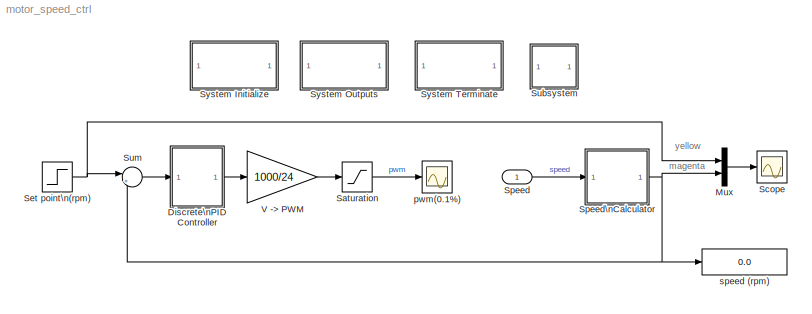
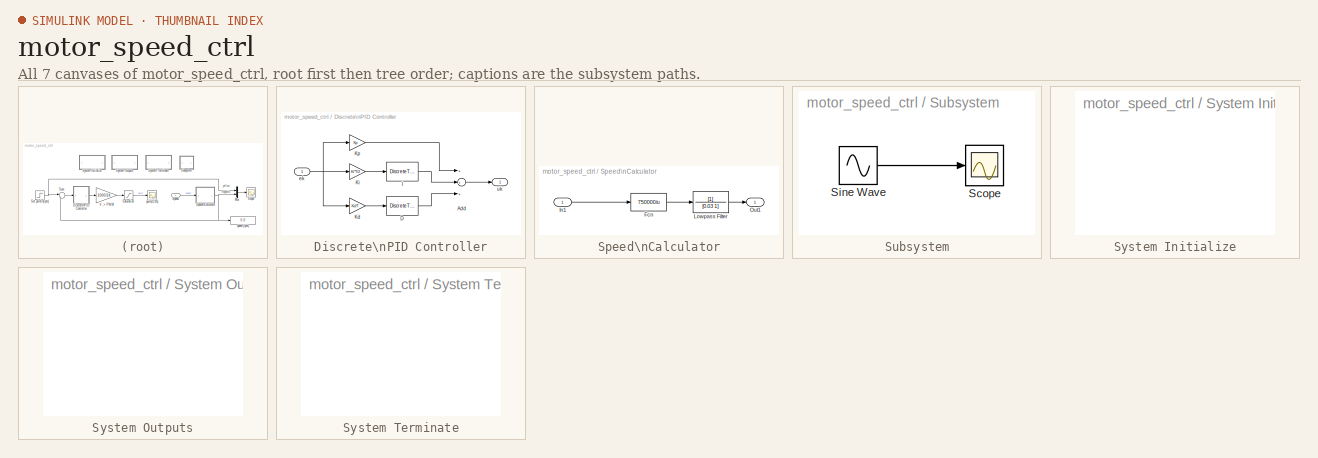
[diagram: thumbnail index - all 7 canvases of the model, root first then tree order]
MODEL motor_speed_ctrl
KIND model
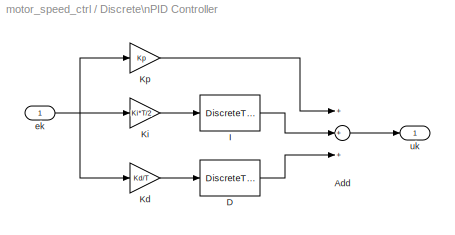
BLOCK [SubSystem] Discrete\nPID Controller
  FunctionWithSeparateData = off
  MaskCallbackString = |||
  MaskEnableString = on,on,on,on
  MaskHideContents = off
  MaskIconFrame = on
  MaskIconOpaque = on
  MaskIconRotate = none
  MaskIconUnits = autoscale
  MaskPortRotate = default
  MaskPromptString = Kp|Ki|Kd|T
  MaskStyleString = edit,edit,edit,edit
  MaskToolTipString = on,on,on,on
  MaskTunableValueString = on,on,on,on
  MaskValueString = 0.05|0.1|0|0.005
  MaskVariables = Kp=@1;Ki=@2;Kd=@3;T=@4;
  MaskVisibilityString = on,on,on,on
  MinAlgLoopOccurrences = off
  Opaque = off
  Ports = [1, 1]
  PropExecContextOutsideSubsystem = off
  RTWSystemCode = Auto
  RequestExecContextInheritance = off
  SID = 2
BLOCK [Sum] Discrete\nPID Controller/Add
  InputSameDT = off
  Inputs = +++
  OutDataType = sfix(16)
  OutDataTypeMode = Inherit via internal rule
  OutDataTypeStr = Inherit: Inherit via internal rule
  OutScaling = 2^-10
  Ports = [3, 1]
  SID = 4
  SaturateOnIntegerOverflow = off
BLOCK [DiscreteTransferFcn] Discrete\nPID Controller/D
  Denominator = [1 0]
  Numerator = [1 -1]
  Ports = [1, 1]
  SID = 5
  SampleTime = T
BLOCK [DiscreteTransferFcn] Discrete\nPID Controller/I
  Denominator = [1 -1]
  Numerator = [1 1]
  Ports = [1, 1]
  SID = 6
  SampleTime = T
BLOCK [Gain] Discrete\nPID Controller/Kd
  Gain = Kd/T
  OutDataType = sfix(16)
  OutDataTypeMode = Inherit via internal rule
  OutDataTypeStr = Inherit: Inherit via internal rule
  OutScaling = 2^0
  ParamDataTypeStr = Inherit: Inherit via internal rule
  ParameterDataType = sfix(16)
  ParameterDataTypeMode = Inherit via internal rule
  ParameterScaling = 2^0
  SID = 7
  SaturateOnIntegerOverflow = off
BLOCK [Gain] Discrete\nPID Controller/Ki
  Gain = Ki*T/2
  OutDataType = sfix(16)
  OutDataTypeMode = Inherit via internal rule
  OutDataTypeStr = Inherit: Inherit via internal rule
  OutScaling = 2^0
  ParamDataTypeStr = Inherit: Inherit via internal rule
  ParameterDataType = sfix(16)
  ParameterDataTypeMode = Inherit via internal rule
  ParameterScaling = 2^0
  SID = 8
  SaturateOnIntegerOverflow = off
BLOCK [Gain] Discrete\nPID Controller/Kp
  Gain = Kp
  OutDataType = sfix(16)
  OutDataTypeMode = Inherit via internal rule
  OutDataTypeStr = Inherit: Inherit via internal rule
  OutScaling = 2^0
  ParamDataTypeStr = Inherit: Inherit via internal rule
  ParameterDataType = sfix(16)
  ParameterDataTypeMode = Inherit via internal rule
  ParameterScaling = 2^0
  SID = 9
  SaturateOnIntegerOverflow = off
BLOCK [Inport] Discrete\nPID Controller/ek
  IconDisplay = Port number
  OutDataType = sfix(16)
  OutScaling = 2^0
  SID = 3
BLOCK [Outport] Discrete\nPID Controller/uk
  IconDisplay = Port number
  OutDataType = sfix(16)
  OutScaling = 2^0
  SID = 10
BLOCK [Mux] Mux
  DisplayOption = bar
  Inputs = 2
  Ports = [2, 1]
  SID = 11
BLOCK [Saturate] Saturation
  LowerLimit = -700
  SID = 12
  UpperLimit = 700
BLOCK [Scope] Scope
  DataFormat = Array
  Floating = off
  LimitDataPoints = off
  NumInputPorts = 1
  Ports = [1]
  SID = 13
  SampleTime = 0
  SaveToWorkspace = on
  YMax = 700
  YMin = 0
BLOCK [Step] Set point\n(rpm)
  After = 800
  SID = 14
  SampleTime = 0
  Time = 0
BLOCK [Inport] Speed
  IconDisplay = Port number
  OutDataType = sfix(16)
  OutScaling = 2^0
  SID = 1
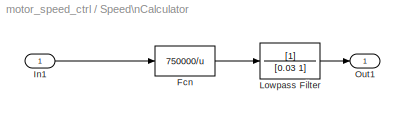
BLOCK [SubSystem] Speed\nCalculator
  FunctionWithSeparateData = off
  MaskHideContents = off
  MinAlgLoopOccurrences = off
  Opaque = off
  Ports = [1, 1]
  PropExecContextOutsideSubsystem = off
  RTWSystemCode = Auto
  RequestExecContextInheritance = off
  SID = 15
BLOCK [Fcn] Speed\nCalculator/Fcn
  Expr = 750000/u
  SID = 17
BLOCK [Inport] Speed\nCalculator/In1
  IconDisplay = Port number
  OutDataType = sfix(16)
  OutScaling = 2^0
  SID = 16
BLOCK [TransferFcn] Speed\nCalculator/Lowpass Filter
  Denominator = [0.03 1]
  SID = 18
BLOCK [Outport] Speed\nCalculator/Out1
  IconDisplay = Port number
  OutDataType = sfix(16)
  OutScaling = 2^0
  SID = 19
BLOCK [SubSystem] Subsystem
  FunctionWithSeparateData = off
  MaskHideContents = off
  MinAlgLoopOccurrences = off
  Opaque = off
  Ports = []
  PropExecContextOutsideSubsystem = off
  RTWSystemCode = Auto
  RequestExecContextInheritance = off
  SID = 27
  TreatAsAtomicUnit = on
BLOCK [Scope] Subsystem/Scope
  DataFormat = StructureWithTime
  Floating = off
  NumInputPorts = 1
  Ports = [1]
  SID = 28
  SampleTime = 0
  SaveName = ScopeData1
BLOCK [Sin] Subsystem/Sine Wave
  Amplitude = 1
  Bias = 0
  Frequency = 1
  Offset = 0
  Phase = 0
  Ports = [0, 1]
  SID = 29
  SampleTime = 0
  Samples = 10
BLOCK [Sum] Sum
  IconShape = round
  InputSameDT = off
  Inputs = |+-
  OutDataType = sfix(16)
  OutDataTypeMode = Inherit via internal rule
  OutDataTypeStr = Inherit: Inherit via internal rule
  OutScaling = 2^0
  Ports = [2, 1]
  SID = 20
  SaturateOnIntegerOverflow = off
BLOCK [SubSystem] System Initialize
  CopyFcn = cccopyfcn(gcb)
  FunctionWithSeparateData = off
  MaskDescription = Add code to a systems Initialize function
  MaskDisplay = disp('System\\nInitialize');
  MaskEnableString = off
  MaskHelp = This block contains text fields to insert custom user code sections at the declaration, execution and exit sections of the systems initialize function.  By placing this block inside a subsytem, the custom user code will appear in that subsystems function.
  MaskHideContents = off
  MaskIconFrame = on
  MaskIconOpaque = on
  MaskIconRotate = none
  MaskIconUnits = autoscale
  MaskPortRotate = default
  MaskPromptString = Mask Parameter 1:
  MaskStyleString = edit
  MaskToolTipString = on
  MaskTunableValueString = on
  MaskType = System Initialize
  MaskValueString = 0
  MaskVariables = ShowInLibBrowser=@1;
  MaskVisibilityString = off
  MinAlgLoopOccurrences = off
  Opaque = off
  OpenFcn = ccopenfcn('System Initialize Function')
  Ports = []
  PropExecContextOutsideSubsystem = off
  RTWSystemCode = Auto
  RequestExecContextInheritance = off
  SID = 21
BLOCK [SubSystem] System Outputs
  CopyFcn = cccopyfcn(gcb)
  FunctionWithSeparateData = off
  MaskDescription = Add code to a systems Outputs function
  MaskDisplay = disp('System\\nOutputs');
  MaskEnableString = off
  MaskHelp = This block contains text fields to insert custom user code sections at the declaration, execution and exit sections of the systems outputs function.  By placing this block inside a subsytem, the custom user code will appear in that subsystems function.
  MaskHideContents = off
  MaskIconFrame = on
  MaskIconOpaque = on
  MaskIconRotate = none
  MaskIconUnits = autoscale
  MaskPortRotate = default
  MaskPromptString = Mask Parameter 1:
  MaskStyleString = edit
  MaskToolTipString = on
  MaskTunableValueString = on
  MaskType = System Outputs
  MaskValueString = 0
  MaskVariables = ShowInLibBrowser=@1;
  MaskVisibilityString = off
  MinAlgLoopOccurrences = off
  Opaque = off
  OpenFcn = ccopenfcn('System Outputs Function')
  Ports = []
  PropExecContextOutsideSubsystem = off
  RTWSystemCode = Auto
  RequestExecContextInheritance = off
  SID = 22
BLOCK [SubSystem] System Terminate
  CopyFcn = cccopyfcn(gcb)
  FunctionWithSeparateData = off
  MaskDescription = Add code to a systems Terminate function
  MaskDisplay = disp('System\\nTerminate');
  MaskEnableString = off
  MaskHelp = This block contains text fields to insert custom user code sections at the declaration, execution and exit sections of the systems terminate function.  By placing this block inside a subsytem, the custom user code will appear in that subsystems function.
  MaskHideContents = off
  MaskIconFrame = on
  MaskIconOpaque = on
  MaskIconRotate = none
  MaskIconUnits = autoscale
  MaskPortRotate = default
  MaskPromptString = Mask Parameter 1:
  MaskStyleString = edit
  MaskToolTipString = on
  MaskTunableValueString = on
  MaskType = System Terminate
  MaskValueString = 0
  MaskVariables = ShowInLibBrowser=@1;
  MaskVisibilityString = off
  MinAlgLoopOccurrences = off
  Opaque = off
  OpenFcn = ccopenfcn('System Terminate Function')
  Ports = []
  PropExecContextOutsideSubsystem = off
  RTWSystemCode = Auto
  RequestExecContextInheritance = off
  SID = 23
BLOCK [Gain] V -> PWM
  Gain = 1000/24
  OutDataType = sfix(16)
  OutDataTypeMode = Inherit via internal rule
  OutDataTypeStr = Inherit: Inherit via internal rule
  OutScaling = 2^0
  ParameterDataType = sfix(16)
  ParameterScaling = 2^0
  SID = 24
  SaturateOnIntegerOverflow = off
BLOCK [Scope] pwm(0.1%)
  DataFormat = Array
  Floating = off
  LimitDataPoints = off
  NumInputPorts = 1
  Ports = [1]
  SID = 25
  SampleTime = 0
  SaveName = ScopeData1
  SaveToWorkspace = on
  YMax = 1100
  YMin = -1100
BLOCK [Display] speed (rpm)
  Decimation = 1
  Lockdown = off
  Ports = [1]
  SID = 26
ANNOTATION (root): magenta
ANNOTATION (root): yellow
LINE Discrete\nPID Controller/Add:1 -> Discrete\nPID Controller/uk:1
LINE Discrete\nPID Controller/D:1 -> Discrete\nPID Controller/Add:3
LINE Discrete\nPID Controller/I:1 -> Discrete\nPID Controller/Add:2
LINE Discrete\nPID Controller/Kd:1 -> Discrete\nPID Controller/D:1
LINE Discrete\nPID Controller/Ki:1 -> Discrete\nPID Controller/I:1
LINE Discrete\nPID Controller/Kp:1 -> Discrete\nPID Controller/Add:1
NET Discrete\nPID Controller/ek:1 -> Discrete\nPID Controller/Kd:1, Discrete\nPID Controller/Ki:1, Discrete\nPID Controller/Kp:1
LINE Discrete\nPID Controller:1 -> V -> PWM:1
LINE Mux:1 -> Scope:1
LINE Saturation:1 -> pwm(0.1%):1
NET Set point\n(rpm):1 -> Mux:1, Sum:1
LINE Speed:1 -> Speed\nCalculator:1
LINE Speed\nCalculator/Fcn:1 -> Speed\nCalculator/Lowpass Filter:1
LINE Speed\nCalculator/In1:1 -> Speed\nCalculator/Fcn:1
LINE Speed\nCalculator/Lowpass Filter:1 -> Speed\nCalculator/Out1:1
NET Speed\nCalculator:1 -> Mux:2, Sum:2, speed (rpm):1
LINE Subsystem/Sine Wave:1 -> Subsystem/Scope:1
LINE Sum:1 -> Discrete\nPID Controller:1
LINE V -> PWM:1 -> Saturation:1
note: NET lines group one-source signal fan-out (src -> all destinations, sorted); 1:1 wires keep LINE
